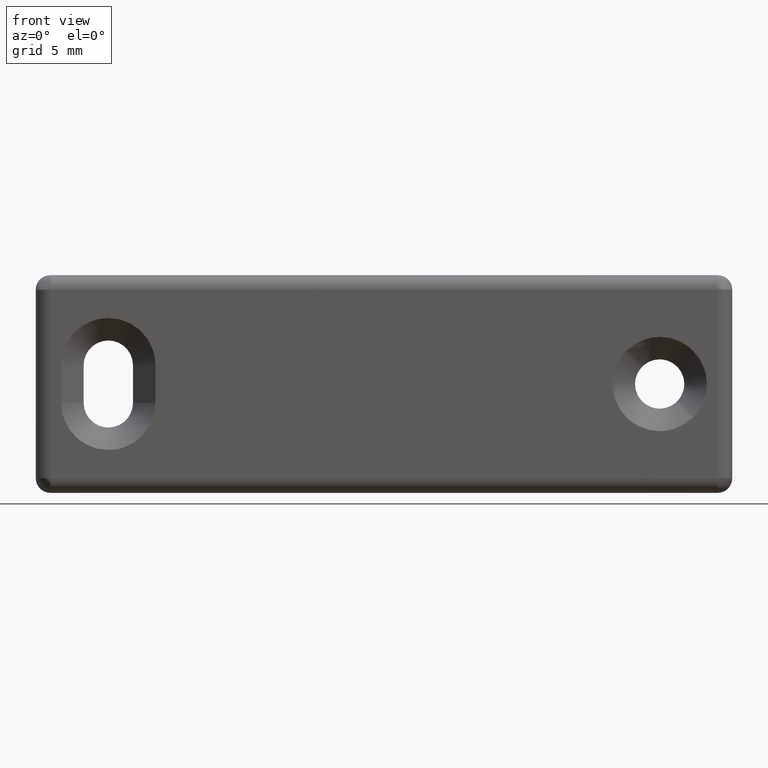
[diagram: clean part render]
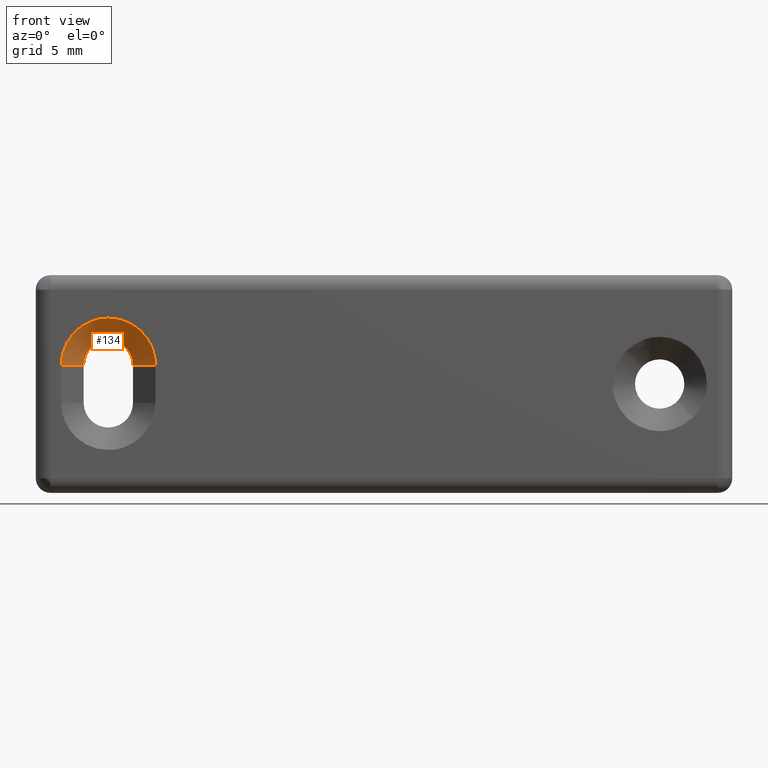
[diagram: same view with one face highlighted and labeled with its STEP entity id]
A machine part, front view. The second image highlights one B-rep face of the part: STEP entity #134.
In plain terms, the highlighted face is a freeform B-spline surface patch.
Its self-contained STEP definition (entity closure, byte-faithful):
#134=ADVANCED_FACE('',(#747),#746,.F.);
#746=( BOUNDED_SURFACE() B_SPLINE_SURFACE( 2,1,((#1280,#1281),(#1282,#1283),(#1284,#1285),(#1286,#1287),(#1288,#1289),(#1290,#1291),(#1292,#1293)), .UNSPECIFIED.,.T.,.F.,.F.) B_SPLINE_SURFACE_WITH_KNOTS((3,2,2,3),(2,2),(0.00000000000E+00,3.33333333333E-01,6.66666666667E-01,1.00000000000E+00),(0.00000000000E+00,1.00000000000E+00), .UNSPECIFIED. ) GEOMETRIC_REPRESENTATION_ITEM() RATIONAL_B_SPLINE_SURFACE(((1.00000000000E+00,1.00000000000E+00),(5.00000000000E-01,5.00000000000E-01),(1.00000000000E+00,1.00000000000E+00),(5.00000000000E-01,5.00000000000E-01),(1.00000000000E+00,1.00000000000E+00),(5.00000000000E-01,5.00000000000E-01),(1.00000000000E+00,1.00000000000E+00))) REPRESENTATION_ITEM('') SURFACE() );
#747=FACE_OUTER_BOUND('',#1294,.T.);
#1280=CARTESIAN_POINT('',(-1.90000000000E+01,-2.49999999999E-01,1.30000000000E+00));
#1281=CARTESIAN_POINT('',(-1.89598343833E+01,-4.85269906037E+00,-3.30252380369E+00));
#1282=CARTESIAN_POINT('',(-1.90000000000E+01,-2.49999999999E-01,1.30000000000E+00));
#1283=CARTESIAN_POINT('',(-1.09880293122E+01,-4.85269906037E+00,-3.23295491478E+00));
#1284=CARTESIAN_POINT('',(-1.90000000000E+01,-2.49999999999E-01,1.30000000000E+00));
#1285=CARTESIAN_POINT('',(-1.50341802729E+01,-4.85269906037E+00,3.63604634630E+00));
#1286=CARTESIAN_POINT('',(-1.90000000000E+01,-2.49999999999E-01,1.30000000000E+00));
#1287=CARTESIAN_POINT('',(-1.90803312335E+01,-4.85269906037E+00,1.05050476074E+01));
#1288=CARTESIAN_POINT('',(-1.90000000000E+01,-2.49999999999E-01,1.30000000000E+00));
#1289=CARTESIAN_POINT('',(-2.30059853439E+01,-4.85269906037E+00,3.56647745739E+00));
#1290=CARTESIAN_POINT('',(-1.90000000000E+01,-2.49999999999E-01,1.30000000000E+00));
#1291=CARTESIAN_POINT('',(-2.69316394543E+01,-4.85269906037E+00,-3.37209269260E+00));
#1292=CARTESIAN_POINT('',(-1.90000000000E+01,-2.49999999999E-01,1.30000000000E+00));
#1293=CARTESIAN_POINT('',(-1.89598343833E+01,-4.85269906037E+00,-3.30252380369E+00));
#1294=EDGE_LOOP('',(#1697,#1698,#1699,#1700,#1701,#1702));
#1697=ORIENTED_EDGE('',*,*,#2026,.T.);
#1698=ORIENTED_EDGE('',*,*,#2027,.F.);
#1699=ORIENTED_EDGE('',*,*,#2028,.F.);
#1700=ORIENTED_EDGE('',*,*,#2024,.F.);
#1701=ORIENTED_EDGE('',*,*,#1965,.F.);
#1702=ORIENTED_EDGE('',*,*,#1964,.F.);
#1964=EDGE_CURVE('',#2935,#2942,#2943,.T.);
#1965=EDGE_CURVE('',#2942,#2913,#2949,.T.);
#2024=EDGE_CURVE('',#2913,#3338,#3339,.T.);
#2026=EDGE_CURVE('',#2935,#3351,#3352,.T.);
#2027=EDGE_CURVE('',#3358,#3351,#3359,.T.);
#2028=EDGE_CURVE('',#3338,#3358,#3365,.T.);
#2913=VERTEX_POINT('',#4206);
#2935=VERTEX_POINT('',#4235);
#2942=VERTEX_POINT('',#4239);
#2943=(BOUNDED_CURVE() B_SPLINE_CURVE(3,(#4240,#4241,#4242,#4243,#4244,#4245,#4246,#4247,#4248,#4249,#4250),.UNSPECIFIED.,.F.,.F.) B_SPLINE_CURVE_WITH_KNOTS((4,1,1,1,1,1,1,1,4),(4.93124450000E-08,6.38128615417E-01,1.31616487839E+00,1.75489467609E+00,2.31327625418E+00,3.15081249704E+00,3.78895696298E+00,4.46698341592E+00,5.10512061850E+00),.UNSPECIFIED.) CURVE() GEOMETRIC_REPRESENTATION_ITEM() RATIONAL_B_SPLINE_CURVE((1.00000000000E+00,1.00000000000E+00,1.00000000000E+00,1.00000000000E+00,1.00000000000E+00,1.00000000000E+00,1.00000000000E+00,1.00000000000E+00,1.00000000000E+00,1.00000000000E+00,1.00000000000E+00)) REPRESENTATION_ITEM('') );
#2949=(BOUNDED_CURVE() B_SPLINE_CURVE(3,(#4251,#4252,#4253,#4254,#4255,#4256,#4257,#4258,#4259,#4260,#4261),.UNSPECIFIED.,.F.,.F.) B_SPLINE_CURVE_WITH_KNOTS((4,1,1,1,1,1,1,1,4),(4.96357440000E-08,6.38128484661E-01,1.31616460840E+00,1.95430836685E+00,2.71209060002E+00,3.35022662740E+00,3.74907167838E+00,4.46698249823E+00,5.10511957019E+00),.UNSPECIFIED.) CURVE() GEOMETRIC_REPRESENTATION_ITEM() RATIONAL_B_SPLINE_CURVE((1.00000000000E+00,1.00000000000E+00,1.00000000000E+00,1.00000000000E+00,1.00000000000E+00,1.00000000000E+00,1.00000000000E+00,1.00000000000E+00,1.00000000000E+00,1.00000000000E+00,1.00000000000E+00)) REPRESENTATION_ITEM('') );
#3338=VERTEX_POINT('',#4602);
#3339=LINE('',#4603,#4604);
#3351=VERTEX_POINT('',#4609);
#3352=LINE('',#4610,#4611);
#3358=VERTEX_POINT('',#4613);
#3359=(BOUNDED_CURVE() B_SPLINE_CURVE(3,(#4614,#4615,#4616,#4617,#4618,#4619,#4620,#4621,#4622,#4623),.UNSPECIFIED.,.F.,.F.) B_SPLINE_CURVE_WITH_KNOTS((4,1,1,1,1,1,1,4),(6.77973250000E-08,3.75511873101E-01,7.92766908438E-01,1.06397875641E+00,1.50206901047E+00,1.73156330045E+00,2.04450280618E+00,2.67037051173E+00),.UNSPECIFIED.) CURVE() GEOMETRIC_REPRESENTATION_ITEM() RATIONAL_B_SPLINE_CURVE((1.00000000000E+00,1.00000000000E+00,1.00000000000E+00,1.00000000000E+00,1.00000000000E+00,1.00000000000E+00,1.00000000000E+00,1.00000000000E+00,1.00000000000E+00,1.00000000000E+00)) REPRESENTATION_ITEM('') );
#3365=(BOUNDED_CURVE() B_SPLINE_CURVE(3,(#4624,#4625,#4626,#4627,#4628,#4629,#4630,#4631,#4632),.UNSPECIFIED.,.F.,.F.) B_SPLINE_CURVE_WITH_KNOTS((4,1,1,1,1,1,4),(6.77998210000E-08,5.63279593868E-01,8.97084555150E-01,1.16830223160E+00,1.58551858025E+00,2.04450280491E+00,2.67037051006E+00),.UNSPECIFIED.) CURVE() GEOMETRIC_REPRESENTATION_ITEM() RATIONAL_B_SPLINE_CURVE((1.00000000000E+00,1.00000000000E+00,1.00000000000E+00,1.00000000000E+00,1.00000000000E+00,1.00000000000E+00,1.00000000000E+00,1.00000000000E+00,1.00000000000E+00)) REPRESENTATION_ITEM('') );
#4206=CARTESIAN_POINT('',(-1.57500000000E+01,-3.50000000000E+00,1.30000000000E+00));
#4235=CARTESIAN_POINT('',(-2.22500000000E+01,-3.50000000000E+00,1.30000000000E+00));
#4239=CARTESIAN_POINT('',(-1.89999990700E+01,-3.50000000000E+00,4.55000000000E+00));
#4240=CARTESIAN_POINT('',(-2.22500000000E+01,-3.50000000000E+00,1.30000000000E+00));
#4241=CARTESIAN_POINT('',(-2.22500191179E+01,-3.50000000000E+00,1.51270857606E+00));
#4242=CARTESIAN_POINT('',(-2.22067934603E+01,-3.50000000000E+00,1.95142433575E+00));
#4243=CARTESIAN_POINT('',(-2.20326154022E+01,-3.50000000000E+00,2.51318637414E+00));
#4244=CARTESIAN_POINT('',(-2.17778952256E+01,-3.50000000000E+00,3.01151425296E+00));
#4245=CARTESIAN_POINT('',(-2.14183948002E+01,-3.50000000000E+00,3.50904318911E+00));
#4246=CARTESIAN_POINT('',(-2.09090209083E+01,-3.50000000000E+00,3.96501665315E+00));
#4247=CARTESIAN_POINT('',(-2.02770291817E+01,-3.50000000000E+00,4.31283303102E+00));
#4248=CARTESIAN_POINT('',(-1.96514209379E+01,-3.50000000000E+00,4.50678321136E+00));
#4249=CARTESIAN_POINT('',(-1.92127117657E+01,-3.50000000000E+00,4.55002501508E+00));
#4250=CARTESIAN_POINT('',(-1.89999990700E+01,-3.50000000000E+00,4.55000000000E+00));
#4251=CARTESIAN_POINT('',(-1.89999990700E+01,-3.50000000000E+00,4.55000000000E+00));
#4252=CARTESIAN_POINT('',(-1.87872890606E+01,-3.50000000000E+00,4.55002542595E+00));
#4253=CARTESIAN_POINT('',(-1.83485795658E+01,-3.50000000000E+00,4.50678567323E+00));
#4254=CARTESIAN_POINT('',(-1.77229704666E+01,-3.50000000000E+00,4.31283245784E+00));
#4255=CARTESIAN_POINT('',(-1.71143926177E+01,-3.50000000000E+00,3.97788635610E+00));
#4256=CARTESIAN_POINT('',(-1.66002342582E+01,-3.50000000000E+00,3.52885154821E+00));
#4257=CARTESIAN_POINT('',(-1.62421752598E+01,-3.50000000000E+00,3.04598073294E+00));
#4258=CARTESIAN_POINT('',(-1.59722447121E+01,-3.50000000000E+00,2.52577161882E+00));
#4259=CARTESIAN_POINT('',(-1.57945119730E+01,-3.50000000000E+00,1.96472489190E+00));
#4260=CARTESIAN_POINT('',(-1.57499783561E+01,-3.50000000000E+00,1.51271100279E+00));
#4261=CARTESIAN_POINT('',(-1.57500000000E+01,-3.50000000000E+00,1.30000000000E+00));
#4602=CARTESIAN_POINT('',(-1.73000000000E+01,-1.95000000000E+00,1.30000000000E+00));
#4603=CARTESIAN_POINT('',(-1.57500000000E+01,-3.50000000000E+00,1.30000000000E+00));
#4604=VECTOR('',#4605,2.19203102168E+00);
#4605=DIRECTION('',(-7.07106781187E-01,7.07106781186E-01,-1.04841657725E-13));
#4609=CARTESIAN_POINT('',(-2.07000000000E+01,-1.95000000000E+00,1.30000000000E+00));
#4610=CARTESIAN_POINT('',(-2.22500000000E+01,-3.50000000000E+00,1.30000000000E+00));
#4611=VECTOR('',#4612,2.19203102168E+00);
#4612=DIRECTION('',(7.07106781187E-01,7.07106781187E-01,4.60796812552E-13));
#4613=CARTESIAN_POINT('',(-1.89999999985E+01,-1.95000000000E+00,3.00000000000E+00));
#4614=CARTESIAN_POINT('',(-1.89999999985E+01,-1.95000000000E+00,3.00000000000E+00));
#4615=CARTESIAN_POINT('',(-1.91251703266E+01,-1.95000000000E+00,3.00002026172E+00));
#4616=CARTESIAN_POINT('',(-1.93894220427E+01,-1.95000000000E+00,2.97069640708E+00));
#4617=CARTESIAN_POINT('',(-1.97258637238E+01,-1.95000000000E+00,2.85032647591E+00));
#4618=CARTESIAN_POINT('',(-2.00477991566E+01,-1.95000000000E+00,2.65466452272E+00));
#4619=CARTESIAN_POINT('',(-2.02776528586E+01,-1.95000000000E+00,2.43851879943E+00));
#4620=CARTESIAN_POINT('',(-2.04678818085E+01,-1.95000000000E+00,2.17182173522E+00));
#4621=CARTESIAN_POINT('',(-2.06416774965E+01,-1.95000000000E+00,1.82145172521E+00));
#4622=CARTESIAN_POINT('',(-2.07001604574E+01,-1.95000000000E+00,1.50864821037E+00));
#4623=CARTESIAN_POINT('',(-2.07000000000E+01,-1.95000000000E+00,1.30000000000E+00));
#4624=CARTESIAN_POINT('',(-1.73000000000E+01,-1.95000000000E+00,1.30000000000E+00));
#4625=CARTESIAN_POINT('',(-1.72998938934E+01,-1.95000000000E+00,1.48777355680E+00));
#4626=CARTESIAN_POINT('',(-1.73500505867E+01,-1.95000000000E+00,1.78672203503E+00));
#4627=CARTESIAN_POINT('',(-1.75130640790E+01,-1.95000000000E+00,2.14247487431E+00));
#4628=CARTESIAN_POINT('',(-1.77081560885E+01,-1.95000000000E+00,2.42316823610E+00));
#4629=CARTESIAN_POINT('',(-1.79872282202E+01,-1.95000000000E+00,2.68890685142E+00));
#4630=CARTESIAN_POINT('',(-1.84298746557E+01,-1.95000000000E+00,2.93256564784E+00));
#4631=CARTESIAN_POINT('',(-1.87913531387E+01,-1.95000000000E+00,3.00018260045E+00));
#4632=CARTESIAN_POINT('',(-1.89999999985E+01,-1.95000000000E+00,3.00000000000E+00));